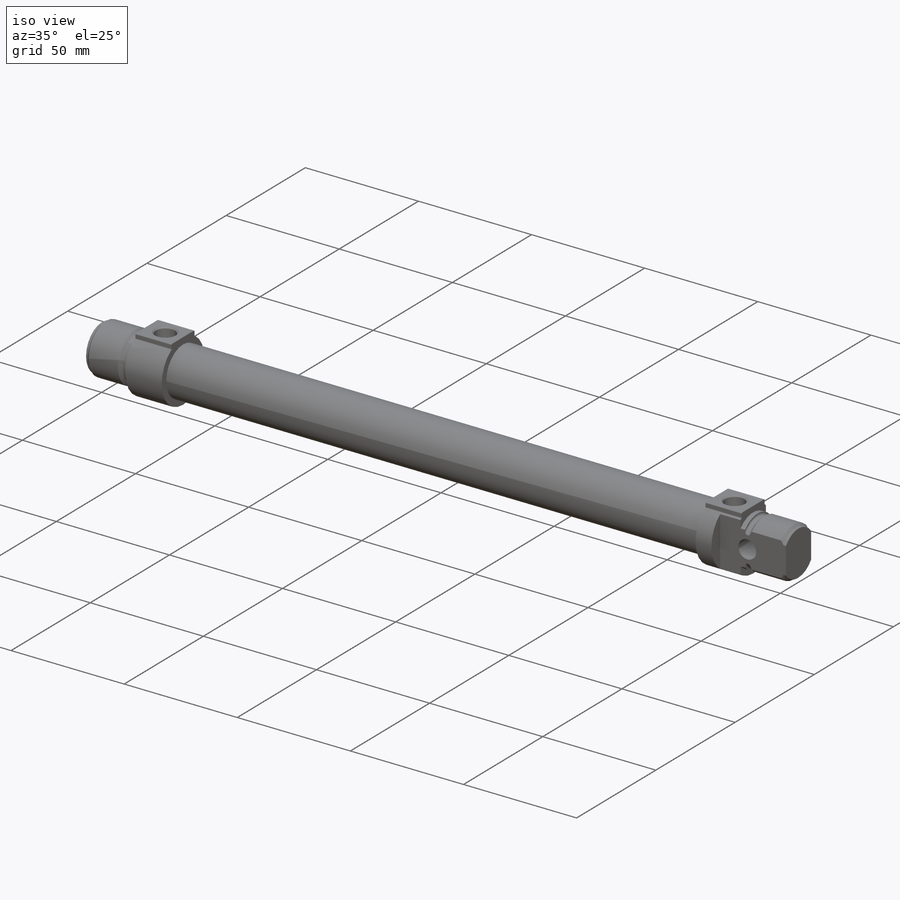
[diagram: iso view]
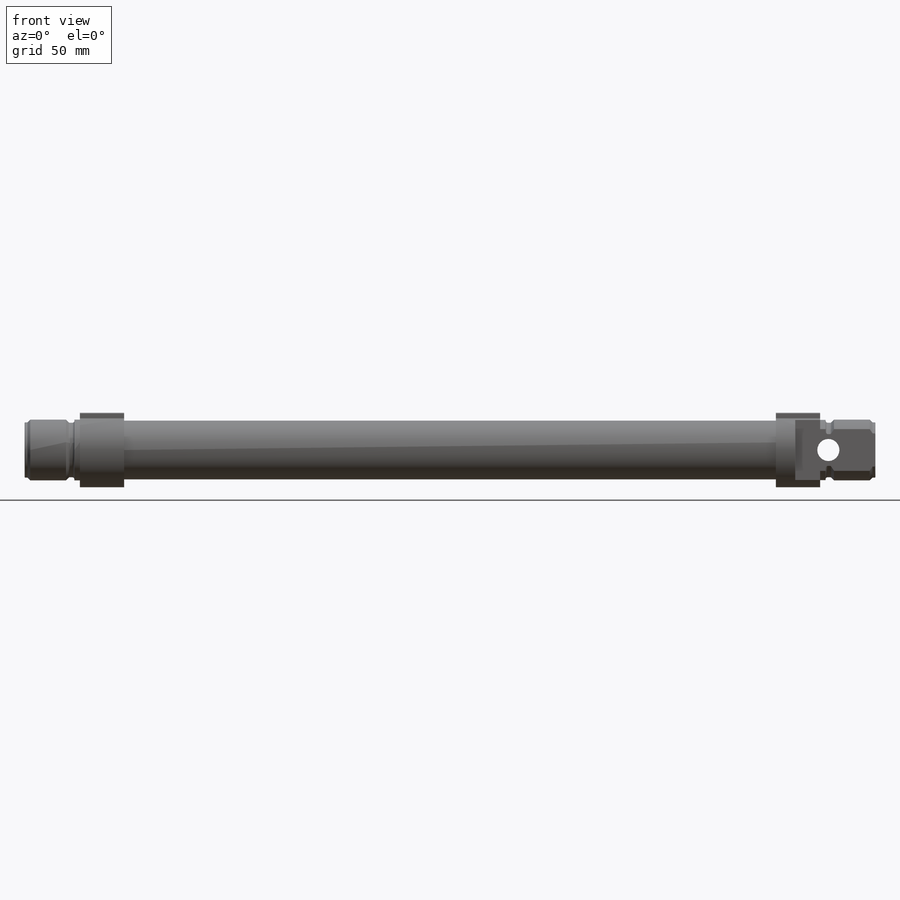
[diagram: front view]
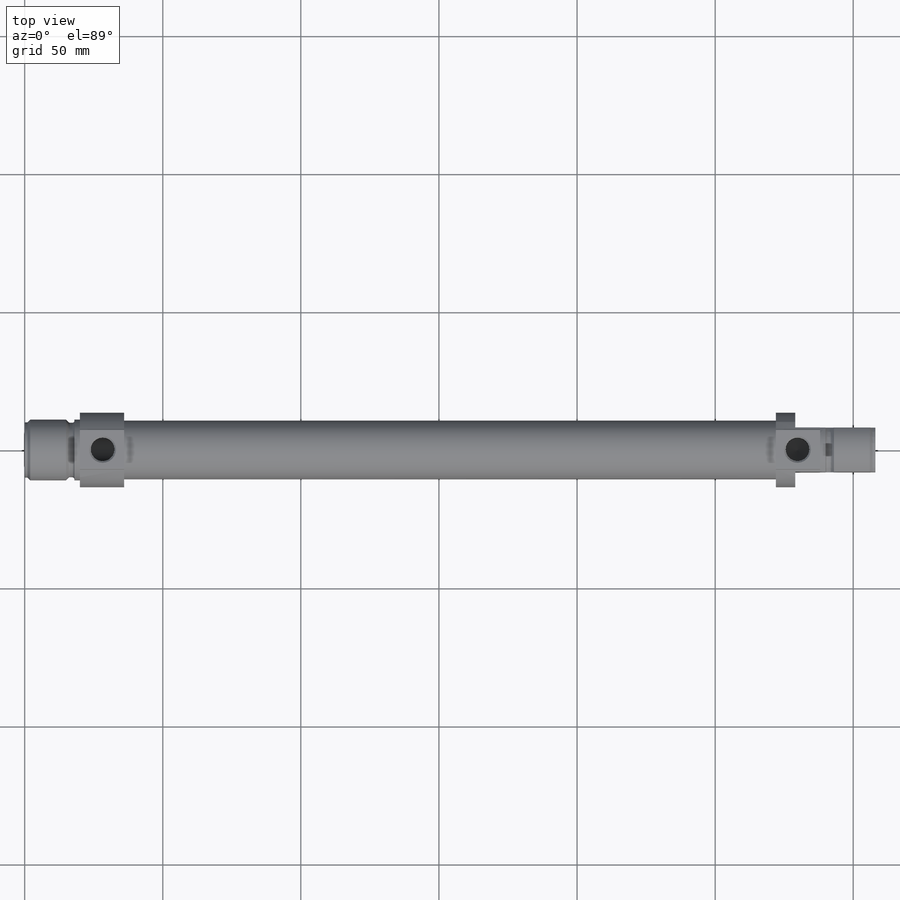
[diagram: top view]
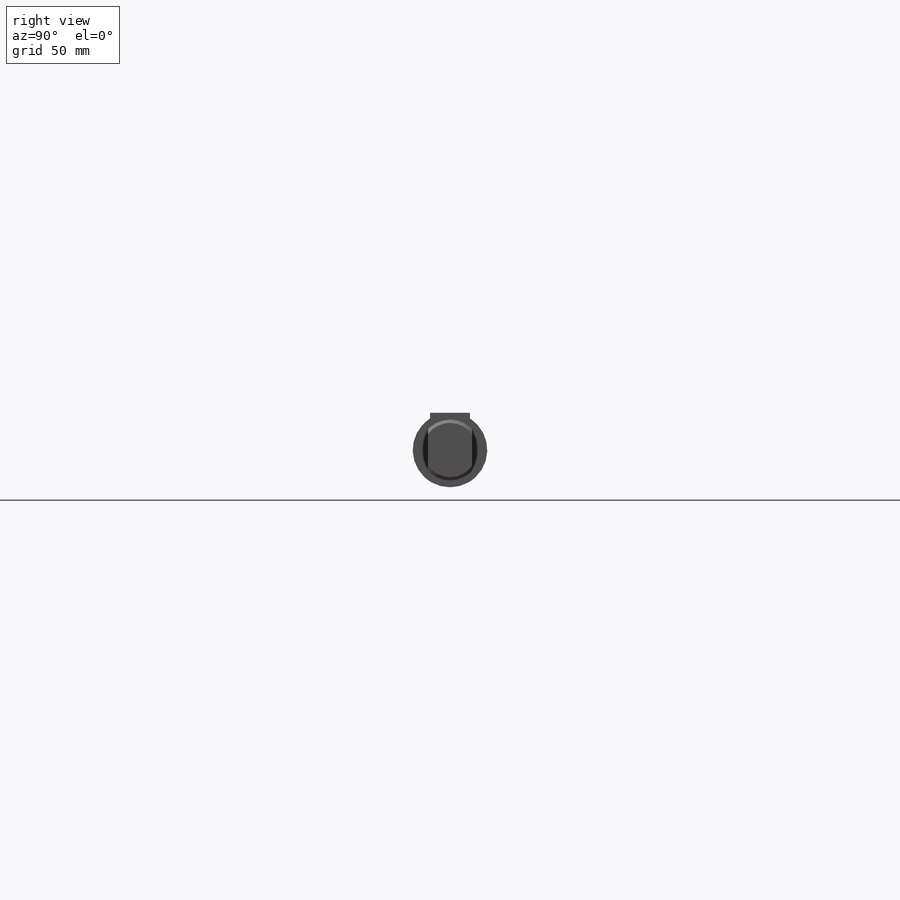
[diagram: right view]
SOLIDWORKS PART (.sldprt)
format: sldprt  version: not decoded by parser v0  size: 558,080 bytes
history: native  units: mm
features: plane x80, sketch x23, thread x4, revolve x3, hole x3, extrude x2, cut_revolve x2, material x1, cut_extrude x1 (+40 scaffold rows collapsed)
feature tree (159):
  scaffold x40  (default folders/planes/origin — collapsed)
  material  "Material <nicht angegeben>"
  plane  "Ebene vorne"
  plane  "Ebene oben"
  plane  "Ebene rechts"
  sketch  "Skizze1"
  revolve  "Rotation1"  [1 undecoded]
  thread  "Gewindedarstellung1"  Diameter=13.87mm  [1 undecoded]
  plane  "Ebene1"  Offset=28.7mm
  plane  "Ebene2"  Offset=10.5mm
  plane  "Ebene3"  Offset=14mm
  plane  "Ebene4"  Offset=13mm
  plane  "Ebene5"  Offset=0mm
  plane  "Ebene6"  Offset=0mm
  plane  "Ebene7"  Offset=20mm
  plane  "Ebene8"  Offset=20mm
  plane  "Ebene9"  Offset=13mm
  plane  "Ebene10"  Offset=4.5mm
  plane  "Ebene11"  Offset=20mm
  sketch  "Skizze2"
  extrude  "Aufsatz-Linear austragen1"  Depth=16mm
  plane  "Ebene12"  Offset=12.5mm
  plane  "Ebene13"
  plane  "Ebene14"  Offset=8.5mm
  plane  "Ebene15"
  plane  "Ebene16"  Offset=6.9mm
  plane  "Ebene17"  Offset=6.6mm
  plane  "Ebene18"
  plane  "Ebene19"  Offset=6.9mm
  plane  "Ebene20"
  plane  "Ebene21"  Offset=1.5mm
  sketch  "Skizze3"
  revolve  "Rotation2"  Angle=360deg
  plane  "Ebene22"  Offset=272mm
  sketch  "Skizze4"
  extrude  "Aufsatz-Linear austragen2"  Depth=16mm
  plane  "Ebene23"  Offset=3.8mm
  plane  "Ebene24"  Offset=3.5mm
  plane  "Ebene25"  Offset=6.6mm
  plane  "Ebene26"
  plane  "Ebene27"  Offset=6.9mm
  plane  "Ebene28"
  plane  "Ebene29"  Offset=1.5mm
  plane  "Ebene30"  Offset=335mm
  sketch  "Skizze5"
  revolve  "Rotation3"  [1 undecoded]
  thread  "Gewindedarstellung2"  Diameter=12.87mm  [1 undecoded]
  plane  "Ebene31"  Offset=13mm
  plane  "Ebene32"  Offset=4.5mm
  plane  "Ebene33"  Offset=20mm
  sketch  "Skizze6"
  cut_extrude  "Schnitt-Linear austragen1"  Depth=13.5mm
  plane  "Ebene34"  Offset=291mm
  hole  "Bohrung1"  Diameter=8mm Depth=16mm
  sketch  "Skizze8"
  sketch  "Skizze7"  dims[Durchmesser=8.0mm Tiefe=16.0mm]
  hole  "Bohrung2"  Diameter=8.566mm Depth=13.5mm
  sketch  "Skizze10"
  sketch  "Skizze9"  dims[Durchmesser=8.566mm Tiefe=13.5mm Senkwinkel1=90.0deg Senkdurchmesser3=9.728mm]
  thread  "Gewindedarstellung3"  Diameter=9.5mm  [1 undecoded]
  hole  "Bohrung3"  Diameter=8.566mm Depth=16mm
  sketch  "Skizze12"
  sketch  "Skizze11"  dims[Durchmesser=8.566mm Tiefe=16.0mm Senkdurchmesser1=9.728mm Senkwinkel1=90.0deg Spitzenwinkel=120.0deg]
  thread  "Gewindedarstellung4"  Diameter=8mm  [1 undecoded]
  sketch  "Skizze13"
  cut_revolve  "Schnitt-Rotation1"  Angle=360deg
  plane  "Ebene35"  Offset=4mm
  plane  "Ebene36"  Offset=13.5mm
  plane  "Ebene37"  Offset=6.5mm
  plane  "Ebene38"  Offset=0mm
  plane  "Ebene39"  Offset=20mm
  plane  "Ebene40"  Offset=288mm
  plane  "Ebene41"  Offset=20mm
  plane  "Ebene42"  Offset=13.5mm
  plane  "Ebene43"  Offset=45.5mm
  plane  "Ebene44"  Offset=262.5mm
  plane  "Ebene45"  Offset=0mm
  plane  "Ebene46"  Offset=20mm
  plane  "Ebene47"  Offset=13.5mm
  cut_revolve  "Ordner1___EndTag___"  [1 undecoded]
  plane  "FDT_FRONT XY"
  plane  "FDT_FRONT XZ"
  plane  "FDT_FRONT YZ"
  sketch  "FDT_FRONT"
  plane  "FDT_QSFRONT XY"
  plane  "FDT_QSFRONT XZ"
  plane  "FDT_QSFRONT YZ"
  sketch  "FDT_QSFRONT"
  plane  "FDT_QSREAR XY"
  plane  "FDT_QSREAR XZ"
  plane  "FDT_QSREAR YZ"
  sketch  "FDT_QSREAR"
  plane  "FDT_REAR XY"
  plane  "FDT_REAR XZ"
  plane  "FDT_REAR YZ"
  sketch  "FDT_REAR"
  plane  "FDT_SMBR1 XY"
  plane  "FDT_SMBR1 XZ"
  plane  "FDT_SMBR1 YZ"
  sketch  "FDT_SMBR1"
  plane  "FDT_SMBR2 XY"
  plane  "FDT_SMBR2 XZ"
  plane  "FDT_SMBR2 YZ"
  sketch  "FDT_SMBR2"
  plane  "FDT_SWIVELAXIS XY"
  plane  "FDT_SWIVELAXIS XZ"
  plane  "FDT_SWIVELAXIS YZ"
  sketch  "FDT_SWIVELAXIS"
  plane  "NUT XY"
  plane  "NUT XZ"
  plane  "NUT YZ"
  sketch  "NUT"
  plane  "ZR XY"
  plane  "ZR XZ"
  plane  "ZR YZ"
  sketch  "ZR"
  plane  "ZYL XY"
  plane  "ZYL XZ"
  plane  "ZYL YZ"
  sketch  "ZYL"
decode coverage: 15 of 38 modeling features carry decoded parameters
note: 7 parameter values undecoded
summary: no parameter record found for 3 features
note: suppression state not decoded; provenance and decode notes live in map.json
